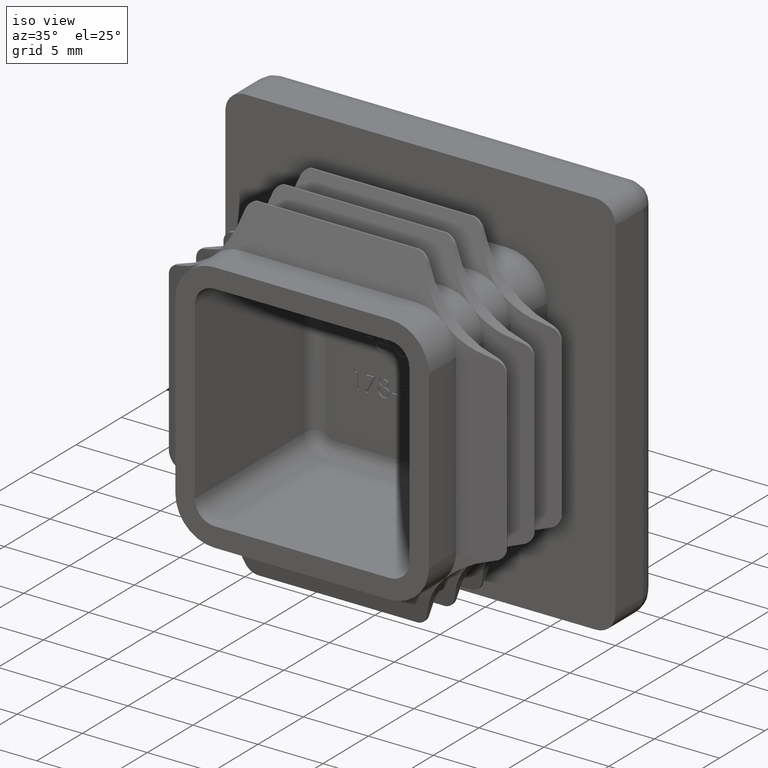
[diagram: clean part render]
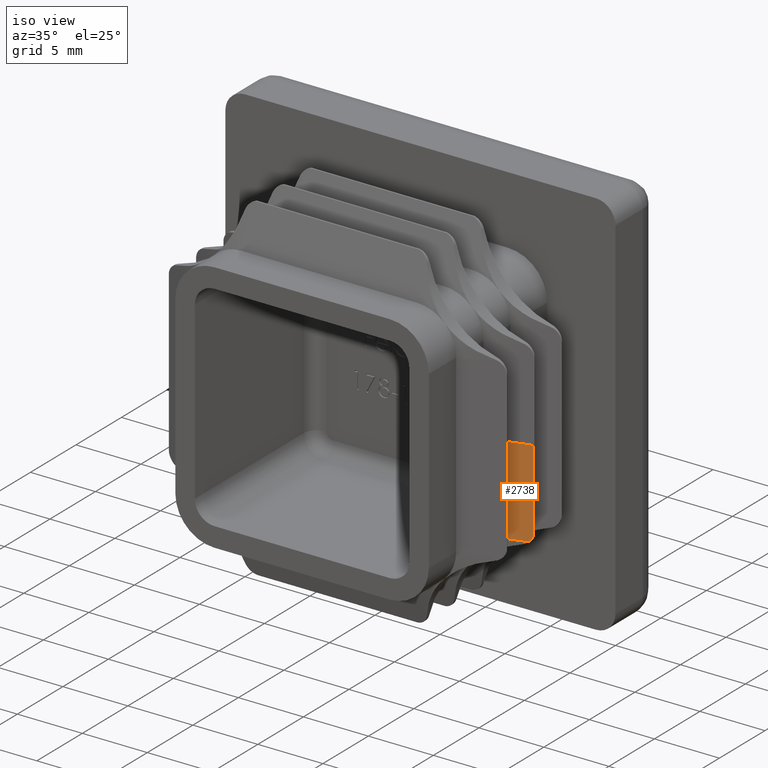
[diagram: same view with one face highlighted and labeled with its STEP entity id]
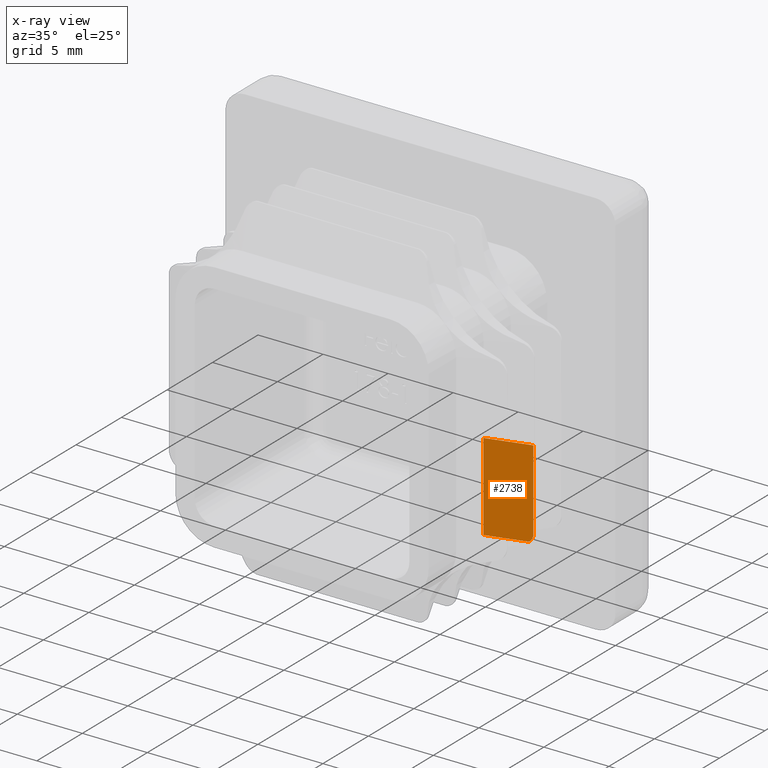
[diagram: x-ray of the same camera — body ghosted, the highlighted face saturated]
A machine part, iso view. The second image highlights one B-rep face of the part: STEP entity #2738.
The next image is the same camera in x-ray: the body ghosted, the highlighted face saturated — about 0% of this face is hidden behind the body in this view.
In plain terms, the highlighted planar face has unit normal (-0.2702, 0.9628, 0).
Its self-contained STEP definition (entity closure, byte-faithful):
#548 = VECTOR ( 'NONE', #3062, 1000.000000000000114 ) ;
#596 = LINE ( 'NONE', #10529, #10023 ) ;
#691 = VERTEX_POINT ( 'NONE', #17638 ) ;
#845 = EDGE_CURVE ( 'NONE', #691, #1527, #596, .T. ) ;
#1407 = LINE ( 'NONE', #10943, #548 ) ;
#1421 = CARTESIAN_POINT ( 'NONE',  ( 12.96351034624627196, -6.098140113671520979, 0.000000000000000000 ) ) ;
#1527 = VERTEX_POINT ( 'NONE', #9537 ) ;
#2738 = ADVANCED_FACE ( 'NONE', ( #19613 ), #4478, .F. ) ;
#3018 = DIRECTION ( 'NONE',  ( -0.2702069249246520921, 0.9628022734304086949, 3.472105896579979141E-17 ) ) ;
#3062 = DIRECTION ( 'NONE',  ( 0.9628022734304085839, 0.2702069249246520366, 0.000000000000000000 ) ) ;
#3242 = LINE ( 'NONE', #1421, #16075 ) ;
#4237 =( BOUNDED_CURVE ( )  B_SPLINE_CURVE ( 3, ( #12342, #10846, #10704, #12271 ),
 .UNSPECIFIED., .F., .F. ) 
 B_SPLINE_CURVE_WITH_KNOTS ( ( 4, 4 ),
 ( 2.339363626038050814, 2.870617545554970729 ),
 .UNSPECIFIED. ) 
 CURVE ( )  GEOMETRIC_REPRESENTATION_ITEM ( )  RATIONAL_B_SPLINE_CURVE ( ( 1.000000000000000000, 0.9766187364280144445, 0.9766187364280144445, 1.000000000000000000 ) ) 
 REPRESENTATION_ITEM ( '' )  );
#4478 = PLANE ( 'NONE',  #17304 ) ;
#4613 = DIRECTION ( 'NONE',  ( -0.9628022734304085839, -0.2702069249246520366, 0.000000000000000000 ) ) ;
#5123 = EDGE_CURVE ( 'NONE', #8482, #691, #3242, .T. ) ;
#6065 = CARTESIAN_POINT ( 'NONE',  ( 12.96351034624627196, -6.098140113671520979, 0.000000000000000000 ) ) ;
#6805 = VERTEX_POINT ( 'NONE', #11303 ) ;
#6846 = DIRECTION ( 'NONE',  ( -1.284980352575413932E-16, 0.000000000000000000, -1.000000000000000000 ) ) ;
#7116 = EDGE_LOOP ( 'NONE', ( #13526, #14581, #8517, #8220, #15242 ) ) ;
#8220 = ORIENTED_EDGE ( 'NONE', *, *, #5123, .F. ) ;
#8482 = VERTEX_POINT ( 'NONE', #12452 ) ;
#8517 = ORIENTED_EDGE ( 'NONE', *, *, #845, .F. ) ;
#9225 = VERTEX_POINT ( 'NONE', #19432 ) ;
#9300 = LINE ( 'NONE', #11417, #17203 ) ;
#9537 = CARTESIAN_POINT ( 'NONE',  ( 12.96351034624627019, -6.098140113671521867, -6.298763804525693288 ) ) ;
#10023 = VECTOR ( 'NONE', #16785, 1000.000000000000000 ) ;
#10529 = CARTESIAN_POINT ( 'NONE',  ( 12.96351034624627196, -6.098140113671521867, 0.000000000000000000 ) ) ;
#10704 = CARTESIAN_POINT ( 'NONE',  ( 12.91554383767830849, -6.111601738282502083, -6.471424315589427323 ) ) ;
#10846 = CARTESIAN_POINT ( 'NONE',  ( 12.82393375386921264, -6.137311772129795173, -6.625437401298014173 ) ) ;
#10943 = CARTESIAN_POINT ( 'NONE',  ( 12.96351034624627019, -6.098140113671520979, -6.749999999999995559 ) ) ;
#11016 = EDGE_CURVE ( 'NONE', #9225, #1527, #4237, .T. ) ;
#11303 = CARTESIAN_POINT ( 'NONE',  ( 9.749999999999994671, -7.000000000000012434, -6.749999999999995559 ) ) ;
#11417 = CARTESIAN_POINT ( 'NONE',  ( 9.750000000000030198, -7.000000000000001776, 0.000000000000000000 ) ) ;
#12271 = CARTESIAN_POINT ( 'NONE',  ( 12.96351034624627019, -6.098140113671521867, -6.298763804525693288 ) ) ;
#12342 = CARTESIAN_POINT ( 'NONE',  ( 12.69510597336516611, -6.173466815979910649, -6.749999999999995559 ) ) ;
#12452 = CARTESIAN_POINT ( 'NONE',  ( 9.749999999999994671, -7.000000000000012434, 0.000000000000000000 ) ) ;
#13386 = EDGE_CURVE ( 'NONE', #6805, #9225, #1407, .T. ) ;
#13526 = ORIENTED_EDGE ( 'NONE', *, *, #13386, .T. ) ;
#14581 = ORIENTED_EDGE ( 'NONE', *, *, #11016, .T. ) ;
#15242 = ORIENTED_EDGE ( 'NONE', *, *, #19100, .T. ) ;
#15531 = DIRECTION ( 'NONE',  ( 0.9628022734304085839, 0.2702069249246520366, 0.000000000000000000 ) ) ;
#16075 = VECTOR ( 'NONE', #15531, 1000.000000000000114 ) ;
#16785 = DIRECTION ( 'NONE',  ( -1.284980352575413932E-16, 0.000000000000000000, -1.000000000000000000 ) ) ;
#17203 = VECTOR ( 'NONE', #6846, 1000.000000000000000 ) ;
#17304 = AXIS2_PLACEMENT_3D ( 'NONE', #6065, #3018, #4613 ) ;
#17638 = CARTESIAN_POINT ( 'NONE',  ( 12.96351034624627196, -6.098140113671521867, 0.000000000000000000 ) ) ;
#19100 = EDGE_CURVE ( 'NONE', #8482, #6805, #9300, .T. ) ;
#19432 = CARTESIAN_POINT ( 'NONE',  ( 12.69510597336516611, -6.173466815979910649, -6.749999999999995559 ) ) ;
#19613 = FACE_OUTER_BOUND ( 'NONE', #7116, .T. ) ;